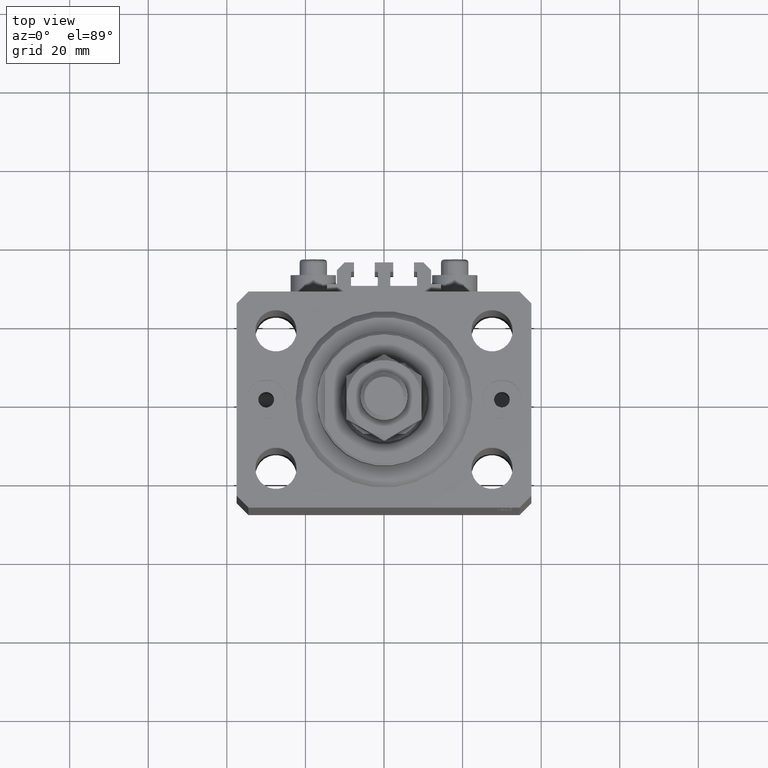
[diagram: clean part render]
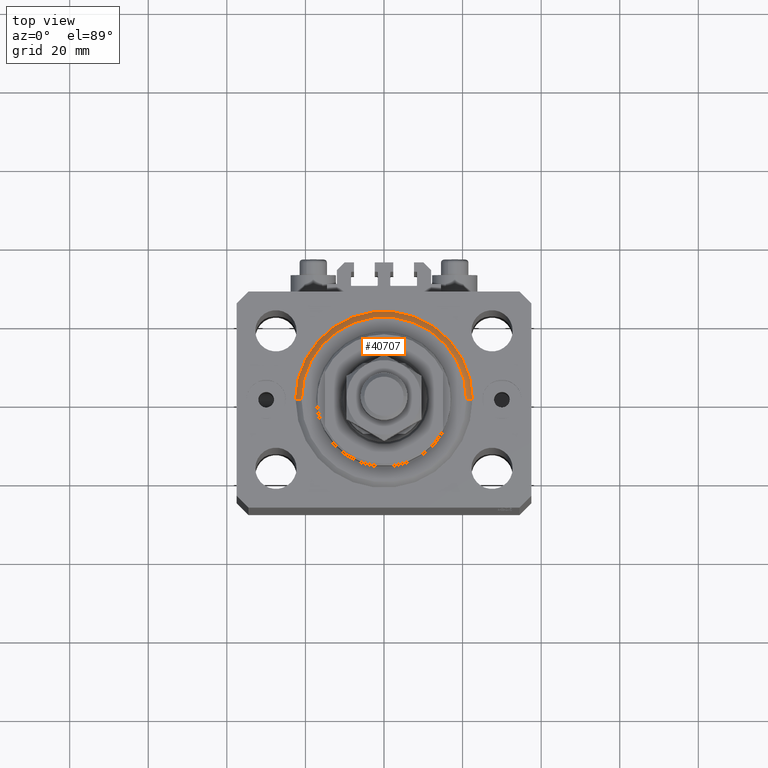
[diagram: same view with one face highlighted and labeled with its STEP entity id]
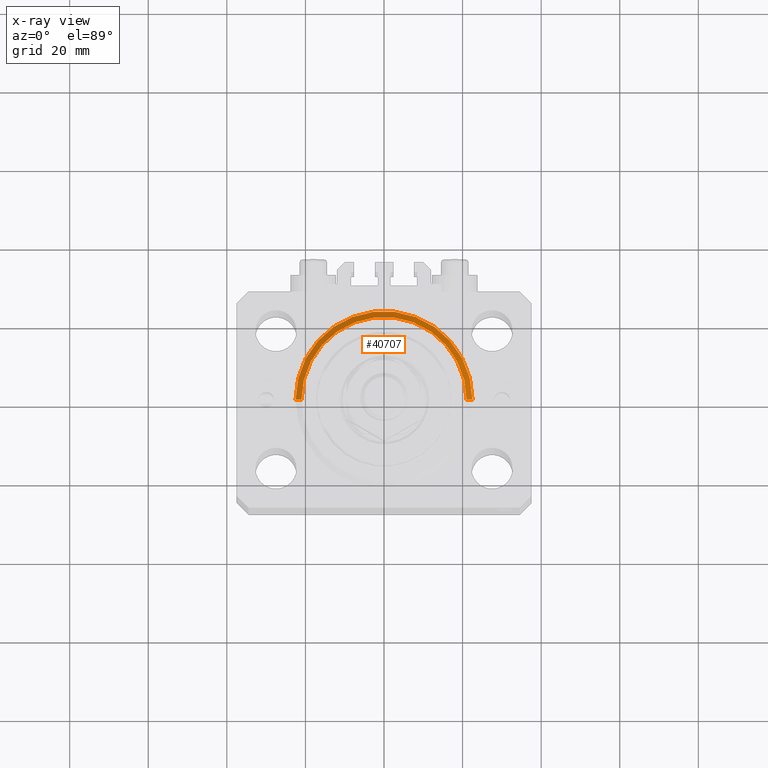
[diagram: x-ray of the same camera — body ghosted, the highlighted face saturated]
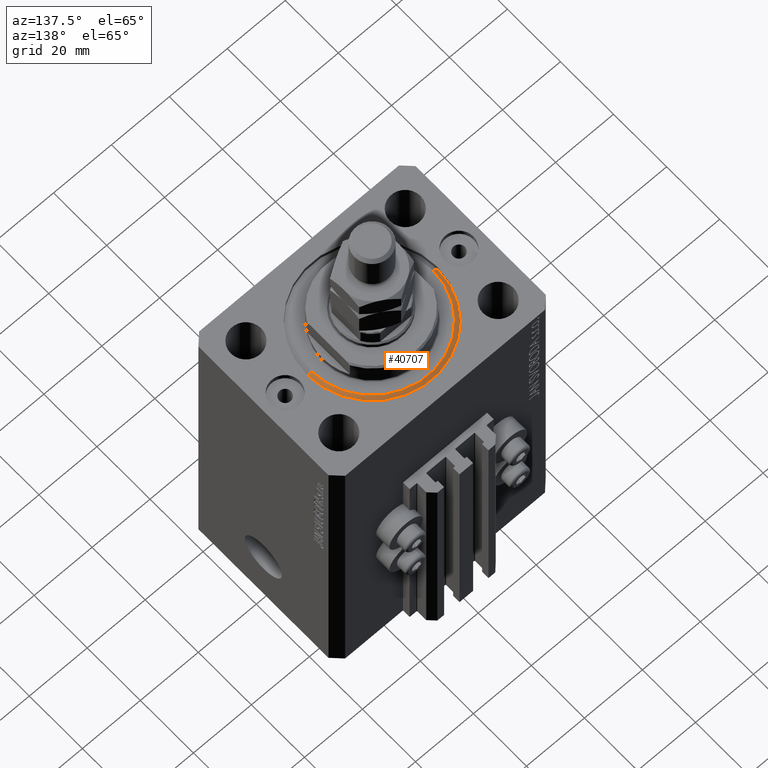
[diagram: same view with one face highlighted and labeled with its STEP entity id]
A machine part, top view. The second image highlights one B-rep face of the part: STEP entity #40707.
The next image is the same camera in x-ray: the body ghosted, the highlighted face saturated — about 0% of this face is hidden behind the body in this view.
A second angle (auxiliary view) of the same face is appended — the face is thin or edge-on in the first view.
In plain terms, the highlighted conical surface has half-angle 45 deg.
Its self-contained STEP definition (entity closure, byte-faithful):
#990 = VECTOR ( 'NONE', #16875, 1000.000000000000114 ) ;
#1023 = CONICAL_SURFACE ( 'NONE', #31785, 22.50000000000000355, 0.7853981633974517207 ) ;
#6379 = AXIS2_PLACEMENT_3D ( 'NONE', #33229, #13720, #14442 ) ;
#6758 = EDGE_LOOP ( 'NONE', ( #47962, #37280, #25699, #31190 ) ) ;
#8155 = CARTESIAN_POINT ( 'NONE',  ( -20.99999999999995381, 2.663606788145490261E-15, 0.000000000000000000 ) ) ;
#9069 = EDGE_CURVE ( 'NONE', #48807, #39556, #16587, .T. ) ;
#9543 = EDGE_CURVE ( 'NONE', #21051, #48340, #23757, .T. ) ;
#11440 = DIRECTION ( 'NONE',  ( -0.000000000000000000, -0.000000000000000000, 1.000000000000000000 ) ) ;
#12645 = AXIS2_PLACEMENT_3D ( 'NONE', #18576, #41050, #33896 ) ;
#12924 = CARTESIAN_POINT ( 'NONE',  ( 22.50000000000000355, 0.000000000000000000, 1.500000000000039524 ) ) ;
#13720 = DIRECTION ( 'NONE',  ( -0.000000000000000000, -0.000000000000000000, 1.000000000000000000 ) ) ;
#14315 = EDGE_CURVE ( 'NONE', #48807, #48340, #18605, .T. ) ;
#14442 = DIRECTION ( 'NONE',  ( 1.000000000000000000, 0.000000000000000000, 0.000000000000000000 ) ) ;
#16587 = CIRCLE ( 'NONE', #12645, 20.99999999999995381 ) ;
#16875 = DIRECTION ( 'NONE',  ( 0.7071067811865500152, 0.000000000000000000, 0.7071067811865451302 ) ) ;
#18576 = CARTESIAN_POINT ( 'NONE',  ( 0.000000000000000000, 0.000000000000000000, 0.000000000000000000 ) ) ;
#18605 = LINE ( 'NONE', #37382, #38721 ) ;
#21051 = VERTEX_POINT ( 'NONE', #24366 ) ;
#22914 = CARTESIAN_POINT ( 'NONE',  ( -22.50000000000000355, 0.000000000000000000, 1.500000000000039524 ) ) ;
#23304 = DIRECTION ( 'NONE',  ( -0.7071067811865500152, 8.659560562354962440E-17, 0.7071067811865451302 ) ) ;
#23757 = CIRCLE ( 'NONE', #6379, 22.50000000000000355 ) ;
#24366 = CARTESIAN_POINT ( 'NONE',  ( 22.50000000000000355, 2.755455298081544383E-15, 1.500000000000039524 ) ) ;
#25699 = ORIENTED_EDGE ( 'NONE', *, *, #9543, .F. ) ;
#30465 = DIRECTION ( 'NONE',  ( 1.000000000000000000, 0.000000000000000000, 0.000000000000000000 ) ) ;
#31190 = ORIENTED_EDGE ( 'NONE', *, *, #40145, .F. ) ;
#31785 = AXIS2_PLACEMENT_3D ( 'NONE', #45253, #11440, #30465 ) ;
#33229 = CARTESIAN_POINT ( 'NONE',  ( 0.000000000000000000, 0.000000000000000000, 1.500000000000039524 ) ) ;
#33282 = CARTESIAN_POINT ( 'NONE',  ( 20.99999999999995381, 0.000000000000000000, 0.000000000000000000 ) ) ;
#33896 = DIRECTION ( 'NONE',  ( 1.000000000000000000, 0.000000000000000000, 0.000000000000000000 ) ) ;
#37280 = ORIENTED_EDGE ( 'NONE', *, *, #14315, .T. ) ;
#37382 = CARTESIAN_POINT ( 'NONE',  ( -22.50000000000000355, 2.755455298081545172E-15, 1.500000000000039524 ) ) ;
#38721 = VECTOR ( 'NONE', #23304, 1000.000000000000114 ) ;
#39556 = VERTEX_POINT ( 'NONE', #33282 ) ;
#40145 = EDGE_CURVE ( 'NONE', #39556, #21051, #47242, .T. ) ;
#40707 = ADVANCED_FACE ( 'NONE', ( #41328 ), #1023, .T. ) ;
#41050 = DIRECTION ( 'NONE',  ( -0.000000000000000000, -0.000000000000000000, -1.000000000000000000 ) ) ;
#41328 = FACE_OUTER_BOUND ( 'NONE', #6758, .T. ) ;
#45253 = CARTESIAN_POINT ( 'NONE',  ( 0.000000000000000000, 0.000000000000000000, 1.500000000000039524 ) ) ;
#47242 = LINE ( 'NONE', #12924, #990 ) ;
#47962 = ORIENTED_EDGE ( 'NONE', *, *, #9069, .F. ) ;
#48340 = VERTEX_POINT ( 'NONE', #22914 ) ;
#48807 = VERTEX_POINT ( 'NONE', #8155 ) ;